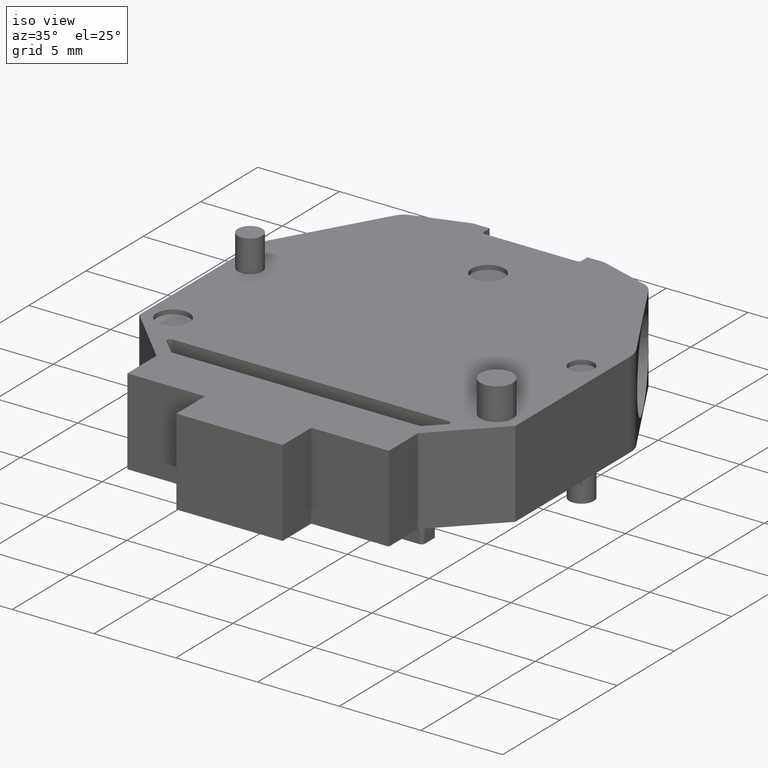
[diagram: clean part render]
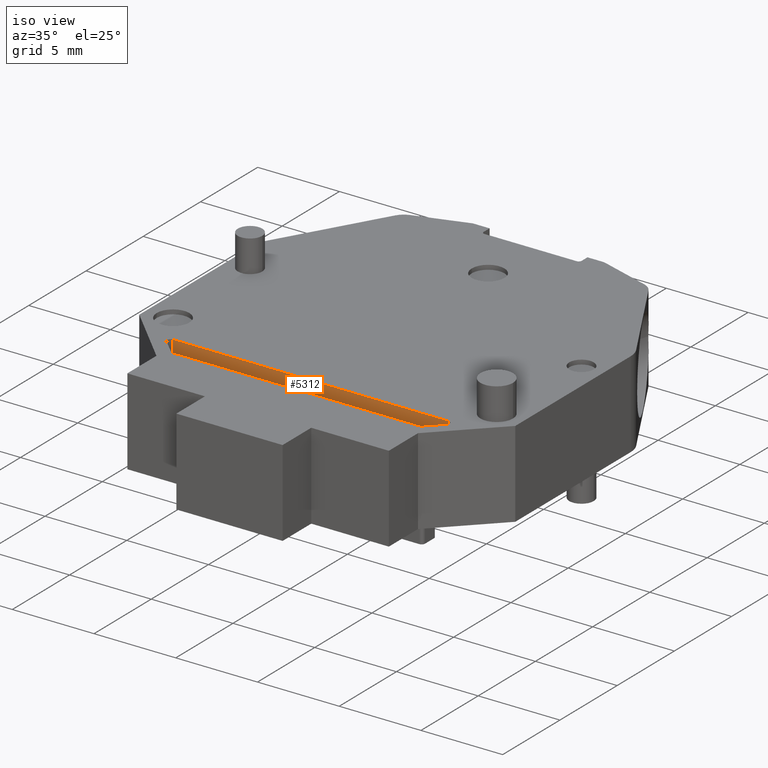
[diagram: same view with one face highlighted and labeled with its STEP entity id]
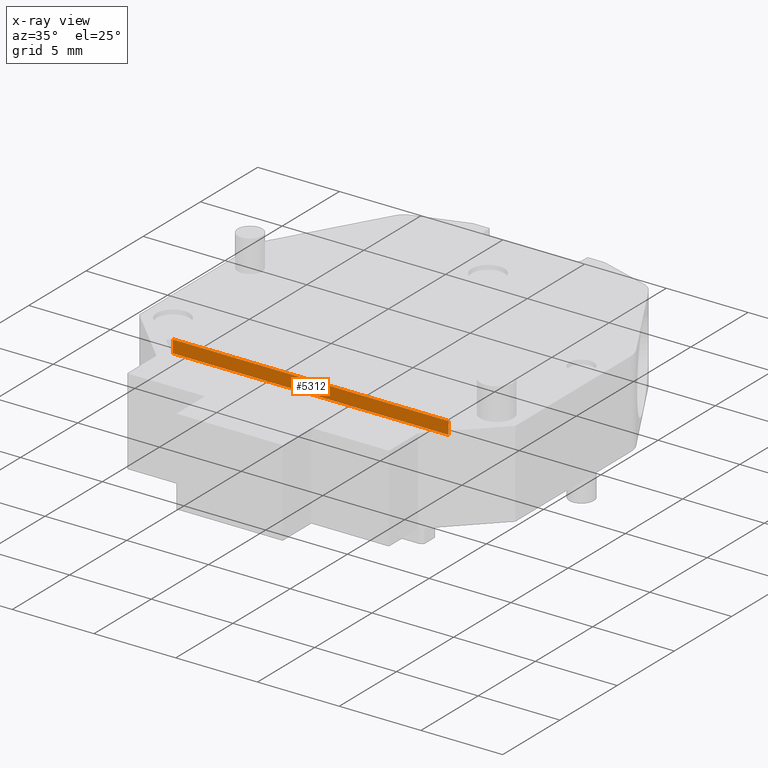
[diagram: x-ray of the same camera — body ghosted, the highlighted face saturated]
A machine part, iso view. The second image highlights one B-rep face of the part: STEP entity #5312.
The next image is the same camera in x-ray: the body ghosted, the highlighted face saturated — about 0% of this face is hidden behind the body in this view.
In plain terms, the highlighted planar face has unit normal (0, 1, 0).
Its self-contained STEP definition (entity closure, byte-faithful):
#1104 = VECTOR ( 'NONE', #2484, 1000.000000000000000 ) ;
#1131 = VECTOR ( 'NONE', #1978, 1000.000000000000000 ) ;
#1134 = VECTOR ( 'NONE', #2013, 1000.000000000000000 ) ;
#1400 = EDGE_CURVE ( 'NONE', #4438, #4440, #2500, .T. ) ;
#1430 = EDGE_CURVE ( 'NONE', #4437, #4438, #2024, .T. ) ;
#1431 = EDGE_CURVE ( 'NONE', #4492, #4437, #2018, .T. ) ;
#1518 = EDGE_LOOP ( 'NONE', ( #2905, #2899, #2938, #2933 ) ) ;
#1978 = DIRECTION ( 'NONE',  ( 1.000000000000000000, 0.0000000000000000000, -0.0000000000000000000 ) ) ;
#1998 = CARTESIAN_POINT ( 'NONE',  ( 299.7239954452639900, 437.0967608090040200, -24.35999999999999900 ) ) ;
#2001 = CARTESIAN_POINT ( 'NONE',  ( 301.2859378434515100, 437.0967608090040200, -25.33000000000000200 ) ) ;
#2013 = DIRECTION ( 'NONE',  ( -0.0000000000000000000, 0.0000000000000000000, -1.000000000000000000 ) ) ;
#2018 = LINE ( 'NONE', #2001, #1131 ) ;
#2024 = LINE ( 'NONE', #1998, #1134 ) ;
#2183 = CARTESIAN_POINT ( 'NONE',  ( 299.7239954452639900, 437.0967608090040200, -26.10000000000000100 ) ) ;
#2252 = CARTESIAN_POINT ( 'NONE',  ( 282.8478802416394700, 437.0967608090040200, -25.33000000000000200 ) ) ;
#2265 = CARTESIAN_POINT ( 'NONE',  ( 282.8478802416394700, 437.0967608090040200, -26.10000000000000100 ) ) ;
#2284 = CARTESIAN_POINT ( 'NONE',  ( 299.7239954452639900, 437.0967608090040200, -25.33000000000000200 ) ) ;
#2484 = DIRECTION ( 'NONE',  ( -1.000000000000000000, -0.0000000000000000000, 0.0000000000000000000 ) ) ;
#2500 = LINE ( 'NONE', #2501, #1104 ) ;
#2501 = CARTESIAN_POINT ( 'NONE',  ( 282.8478802416394700, 437.0967608090040200, -26.10000000000000100 ) ) ;
#2899 = ORIENTED_EDGE ( 'NONE', *, *, #1430, .F. ) ;
#2905 = ORIENTED_EDGE ( 'NONE', *, *, #1400, .F. ) ;
#2933 = ORIENTED_EDGE ( 'NONE', *, *, #5363, .F. ) ;
#2938 = ORIENTED_EDGE ( 'NONE', *, *, #1431, .F. ) ;
#3210 = LINE ( 'NONE', #3218, #5182 ) ;
#3218 = CARTESIAN_POINT ( 'NONE',  ( 282.8478802416394700, 437.0967608090040200, -24.35999999999999900 ) ) ;
#3220 = DIRECTION ( 'NONE',  ( 0.0000000000000000000, -0.0000000000000000000, 1.000000000000000000 ) ) ;
#3813 = FACE_OUTER_BOUND ( 'NONE', #1518, .T. ) ;
#3814 = DIRECTION ( 'NONE',  ( 0.0000000000000000000, -0.0000000000000000000, 1.000000000000000000 ) ) ;
#3834 = PLANE ( 'NONE',  #5129 ) ;
#3843 = CARTESIAN_POINT ( 'NONE',  ( 282.8478802416394700, 437.0967608090040200, -24.35999999999999900 ) ) ;
#3844 = DIRECTION ( 'NONE',  ( 0.0000000000000000000, 1.000000000000000000, 0.0000000000000000000 ) ) ;
#4437 = VERTEX_POINT ( 'NONE', #2284 ) ;
#4438 = VERTEX_POINT ( 'NONE', #2183 ) ;
#4440 = VERTEX_POINT ( 'NONE', #2265 ) ;
#4492 = VERTEX_POINT ( 'NONE', #2252 ) ;
#5129 = AXIS2_PLACEMENT_3D ( 'NONE', #3843, #3844, #3814 ) ;
#5182 = VECTOR ( 'NONE', #3220, 1000.000000000000000 ) ;
#5312 = ADVANCED_FACE ( 'NONE', ( #3813 ), #3834, .F. ) ;
#5363 = EDGE_CURVE ( 'NONE', #4440, #4492, #3210, .T. ) ;